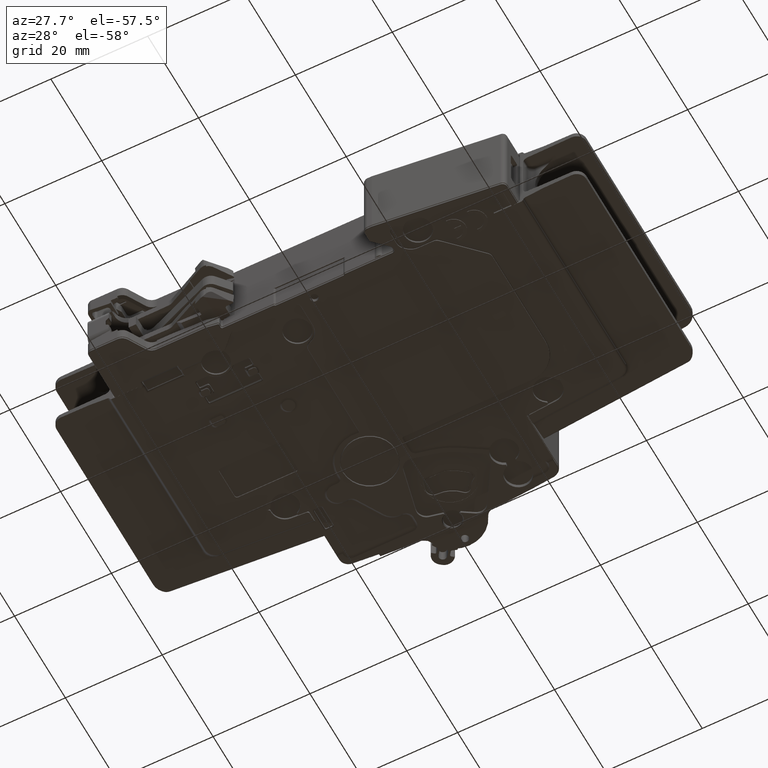
[diagram: clean part render]
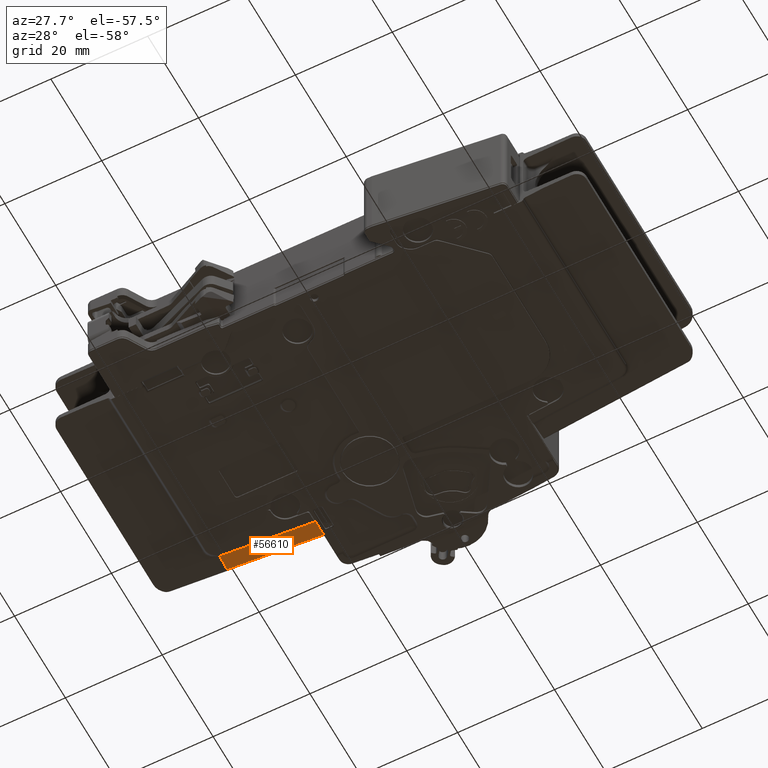
[diagram: same view with one face highlighted and labeled with its STEP entity id]
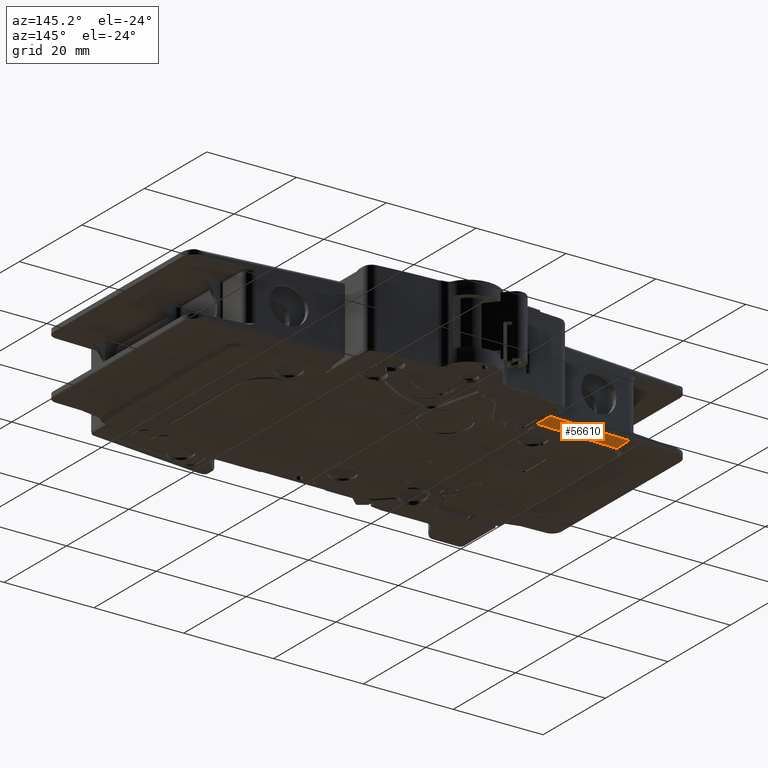
[diagram: same view with one face highlighted and labeled with its STEP entity id]
A machine part, auxiliary view. The second image highlights one B-rep face of the part: STEP entity #56610.
A second angle (auxiliary view) of the same face is appended — the face is thin or edge-on in the first view.
In plain terms, the highlighted planar face has unit normal (-0.0253, 0.114, -0.9932).
Its self-contained STEP definition (entity closure, byte-faithful):
#6511=CARTESIAN_POINT('',(-2.26E1,-7.550657266871E0,-7.535346637196E0));
#7646=CARTESIAN_POINT('',(-2.26E1,-1.099767431695E1,-7.931116260754E0));
#7655=DIRECTION('',(-9.974128555599E-1,-6.974590118089E-2,1.740990615505E-2));
#7656=VECTOR('',#7655,1.911563617426E1);
#7657=CARTESIAN_POINT('',(-2.26E1,-1.099767431695E1,-7.931116260754E0));
#7658=LINE('',#7657,#7656);
#7659=DIRECTION('',(0.E0,9.934732050855E-1,1.140657300730E-1));
#7660=VECTOR('',#7659,3.469662827782E0);
#7661=CARTESIAN_POINT('',(-2.26E1,-1.099767431695E1,-7.931116260754E0));
#7662=LINE('',#7661,#7660);
#7663=DIRECTION('',(9.974128592007E-1,6.974595529749E-2,-1.740948077102E-2));
#7664=VECTOR('',#7663,1.935846617244E1);
#7665=CARTESIAN_POINT('',(-4.190838309479E1,-8.900831983162E0,
-7.198325792610E0));
#7666=LINE('',#7665,#7664);
#7667=DIRECTION('',(6.728375614345E-2,-9.910262220620E-1,-1.154985858994E-1));
#7668=VECTOR('',#7667,3.461848673334E0);
#7669=CARTESIAN_POINT('',(-4.190838309479E1,-8.900831983162E0,
-7.198325792610E0));
#7670=LINE('',#7669,#7668);
#7671=CARTESIAN_POINT('',(-4.166618126241E1,-1.233091158857E1,
-7.598314828866E0));
#7672=CARTESIAN_POINT('',(-4.166721229279E1,-1.233098368523E1,
-7.598296832156E0));
#7673=CARTESIAN_POINT('',(-4.166927394373E1,-1.233113413961E1,
-7.598262265352E0));
#7674=CARTESIAN_POINT('',(-4.167236804520E1,-1.233133331411E1,
-7.598203146712E0));
#7675=CARTESIAN_POINT('',(-4.167442615355E1,-1.233153901089E1,
-7.598181985374E0));
#7676=CARTESIAN_POINT('',(-4.167545691285E1,-1.233161479525E1,
-7.598164418978E0));
#46279=VERTEX_POINT('',#7646);
#46524=VERTEX_POINT('',#6511);
#46525=CARTESIAN_POINT('',(-4.190838309479E1,-8.900831983162E0,
-7.198325792610E0));
#46526=VERTEX_POINT('',#46525);
#46529=CARTESIAN_POINT('',(-4.166618126241E1,-1.233091158857E1,
-7.598314828866E0));
#46530=VERTEX_POINT('',#46529);
#46531=VERTEX_POINT('',#7676);
#56595=CARTESIAN_POINT('',(-3.226536993727E1,-1.005058358549E1,
-7.576066366151E0));
#56596=DIRECTION('',(-2.530928220490E-2,1.140291912621E-1,-9.931549646326E-1));
#56597=DIRECTION('',(-6.728325050177E-2,9.910261615157E-1,1.154993999695E-1));
#56598=AXIS2_PLACEMENT_3D('',#56595,#56596,#56597);
#56599=PLANE('',#56598);
#56600=ORIENTED_EDGE('',*,*,#56580,.F.);
#56601=ORIENTED_EDGE('',*,*,#55183,.T.);
#56603=ORIENTED_EDGE('',*,*,#56602,.F.);
#56605=ORIENTED_EDGE('',*,*,#56604,.T.);
#56607=ORIENTED_EDGE('',*,*,#56606,.F.);
#56608=EDGE_LOOP('',(#56600,#56601,#56603,#56605,#56607));
#56609=FACE_OUTER_BOUND('',#56608,.F.);
#7677=B_SPLINE_CURVE_WITH_KNOTS('',3,(#7671,#7672,#7673,#7674,#7675,#7676),
.UNSPECIFIED.,.F.,.F.,(4,1,1,4),(0.E0,3.333333333333E-1,6.666666666667E-1,1.E0),
.UNSPECIFIED.);
#55183=EDGE_CURVE('',#46279,#46524,#7662,.T.);
#56580=EDGE_CURVE('',#46279,#46530,#7658,.T.);
#56602=EDGE_CURVE('',#46526,#46524,#7666,.T.);
#56604=EDGE_CURVE('',#46526,#46531,#7670,.T.);
#56606=EDGE_CURVE('',#46530,#46531,#7677,.T.);
#56610=ADVANCED_FACE('',(#56609),#56599,.T.);